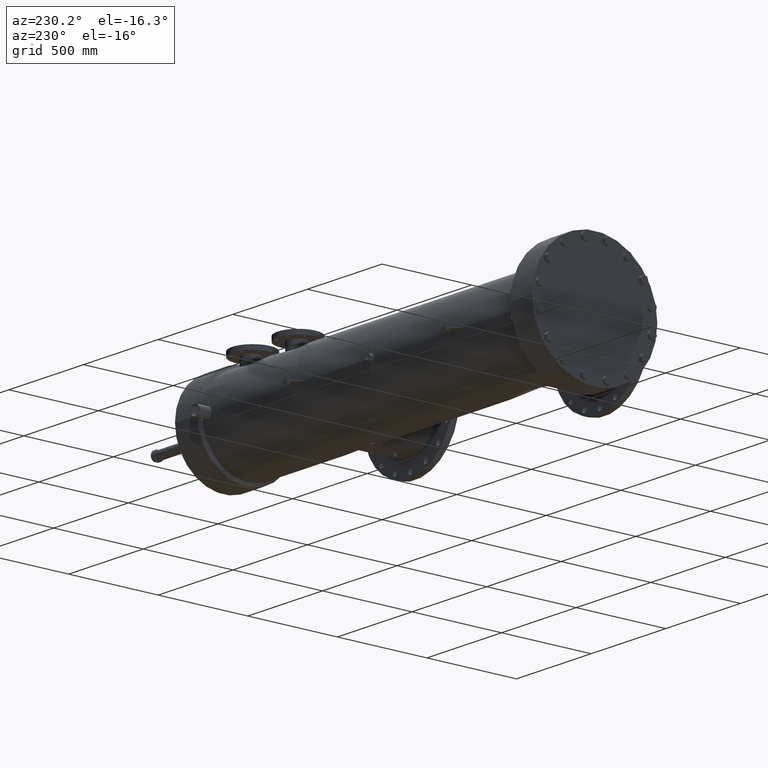
[diagram: clean part render]
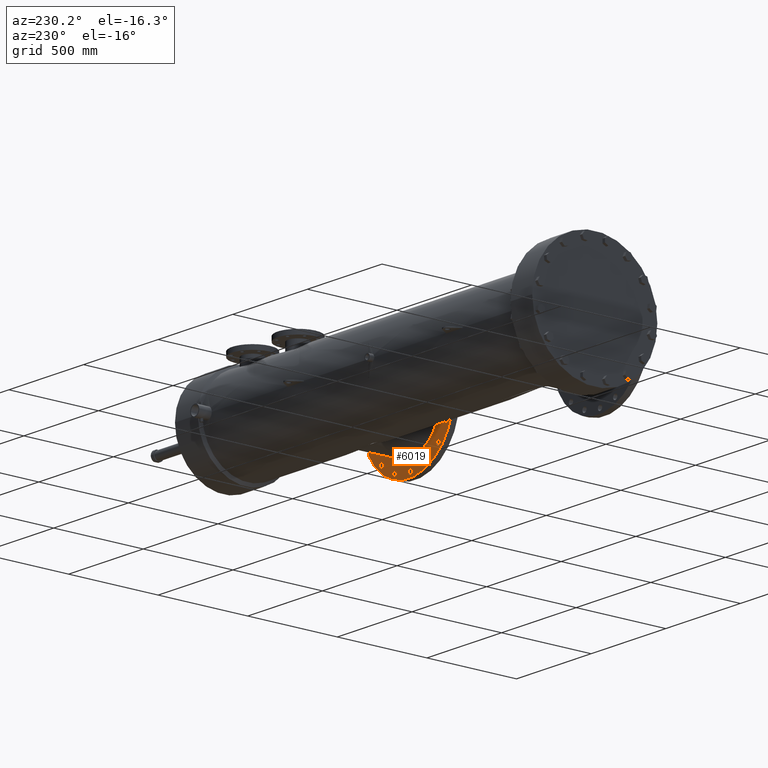
[diagram: same view with one face highlighted and labeled with its STEP entity id]
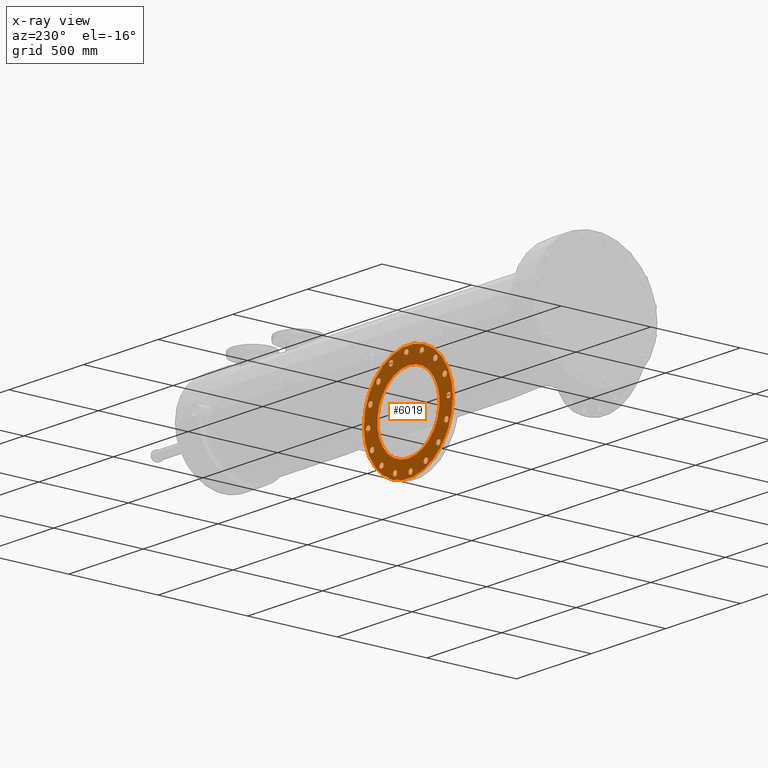
[diagram: x-ray of the same camera — body ghosted, the highlighted face saturated]
A machine part, auxiliary view. The second image highlights one B-rep face of the part: STEP entity #6019.
The next image is the same camera in x-ray: the body ghosted, the highlighted face saturated — about 64% of this face is hidden behind the body in this view.
In plain terms, the highlighted planar face has unit normal (0, -1, 0).
Its self-contained STEP definition (entity closure, byte-faithful):
#63 = DIRECTION ( 'NONE',  ( 1.480676419330224832E-16, -1.000000000000000000, 0.0000000000000000000 ) ) ;
#110 = FACE_BOUND ( 'NONE', #27183, .T. ) ;
#111 = CIRCLE ( 'NONE', #23858, 0.5600000000000006084 ) ;
#112 = CARTESIAN_POINT ( 'NONE',  ( 66.30740194037134927, -15.55999999999999517, -10.61059452241727641 ) ) ;
#130 = EDGE_CURVE ( 'NONE', #6251, #18954, #7925, .T. ) ;
#169 = EDGE_CURVE ( 'NONE', #22085, #3888, #23232, .T. ) ;
#587 = CIRCLE ( 'NONE', #14832, 0.5600000000000006084 ) ;
#680 = DIRECTION ( 'NONE',  ( 1.480676419330224832E-16, -1.000000000000000000, 0.0000000000000000000 ) ) ;
#778 = FACE_BOUND ( 'NONE', #5705, .T. ) ;
#793 = EDGE_LOOP ( 'NONE', ( #9825, #11982 ) ) ;
#866 = VERTEX_POINT ( 'NONE', #1743 ) ;
#882 = VERTEX_POINT ( 'NONE', #27823 ) ;
#1245 = CARTESIAN_POINT ( 'NONE',  ( 56.84592263942093382, -15.55999999999999517, -3.549509922725375244 ) ) ;
#1281 = VERTEX_POINT ( 'NONE', #14366 ) ;
#1512 = VERTEX_POINT ( 'NONE', #9112 ) ;
#1519 = CARTESIAN_POINT ( 'NONE',  ( 71.43197978100022283, -15.55999999999999162, 9.591252612316452542 ) ) ;
#1584 = ORIENTED_EDGE ( 'NONE', *, *, #10883, .T. ) ;
#1607 = CARTESIAN_POINT ( 'NONE',  ( 56.84592263942093382, -15.55999999999999517, -3.549509922725375244 ) ) ;
#1612 = DIRECTION ( 'NONE',  ( 1.000000000000000000, 0.0000000000000000000, 0.0000000000000000000 ) ) ;
#1694 = CIRCLE ( 'NONE', #8399, 0.5600000000000093792 ) ;
#1743 = CARTESIAN_POINT ( 'NONE',  ( 66.86049224117985545, -15.56000000000000405, -8.196850393700785276 ) ) ;
#1838 = ORIENTED_EDGE ( 'NONE', *, *, #26997, .T. ) ;
#1902 = VERTEX_POINT ( 'NONE', #25826 ) ;
#1918 = CARTESIAN_POINT ( 'NONE',  ( 59.18876280426798075, -15.55999999999999517, 7.893917241532289353 ) ) ;
#1927 = ORIENTED_EDGE ( 'NONE', *, *, #22299, .T. ) ;
#2019 = AXIS2_PLACEMENT_3D ( 'NONE', #4158, #10263, #8281 ) ;
#2039 = DIRECTION ( 'NONE',  ( 1.000000000000000000, 0.0000000000000000000, 0.0000000000000000000 ) ) ;
#2152 = ORIENTED_EDGE ( 'NONE', *, *, #130, .T. ) ;
#2169 = CARTESIAN_POINT ( 'NONE',  ( 55.68989771876258033, -15.55999999999999517, 0.5530903008085086281 ) ) ;
#2178 = CARTESIAN_POINT ( 'NONE',  ( 78.03108676359714480, -15.55999999999999162, -0.5530903008085064076 ) ) ;
#2231 = CARTESIAN_POINT ( 'NONE',  ( 67.41358254198836164, -15.55999999999999162, 10.61059452241727463 ) ) ;
#2332 = EDGE_CURVE ( 'NONE', #25750, #866, #11526, .T. ) ;
#2363 = DIRECTION ( 'NONE',  ( 1.000000000000000000, 0.0000000000000000000, 0.0000000000000000000 ) ) ;
#2452 = FACE_BOUND ( 'NONE', #2651, .T. ) ;
#2527 = ORIENTED_EDGE ( 'NONE', *, *, #23782, .T. ) ;
#2651 = EDGE_LOOP ( 'NONE', ( #12347, #21855 ) ) ;
#2659 = DIRECTION ( 'NONE',  ( 1.000000000000000000, 0.0000000000000000000, 0.0000000000000000000 ) ) ;
#2776 = ORIENTED_EDGE ( 'NONE', *, *, #28119, .T. ) ;
#2849 = CARTESIAN_POINT ( 'NONE',  ( 77.47108676359712831, -15.55999999999999162, -0.5530903008085065187 ) ) ;
#2851 = AXIS2_PLACEMENT_3D ( 'NONE', #1607, #12489, #3802 ) ;
#3039 = CARTESIAN_POINT ( 'NONE',  ( 66.86740194037135154, -15.55999999999999517, -10.61059452241727641 ) ) ;
#3057 = AXIS2_PLACEMENT_3D ( 'NONE', #14423, #5679, #27354 ) ;
#3139 = AXIS2_PLACEMENT_3D ( 'NONE', #23870, #10822, #13017 ) ;
#3171 = CIRCLE ( 'NONE', #20107, 0.5600000000000006084 ) ;
#3179 = AXIS2_PLACEMENT_3D ( 'NONE', #18644, #7726, #25055 ) ;
#3341 = EDGE_CURVE ( 'NONE', #17019, #12633, #9110, .T. ) ;
#3397 = EDGE_CURVE ( 'NONE', #4754, #4293, #7747, .T. ) ;
#3484 = DIRECTION ( 'NONE',  ( 1.480676419330224832E-16, -1.000000000000000000, 0.0000000000000000000 ) ) ;
#3492 = FACE_BOUND ( 'NONE', #25784, .T. ) ;
#3499 = ORIENTED_EDGE ( 'NONE', *, *, #19454, .T. ) ;
#3667 = CARTESIAN_POINT ( 'NONE',  ( 63.87098231845448737, -15.55999999999999517, 10.01456960175893229 ) ) ;
#3768 = AXIS2_PLACEMENT_3D ( 'NONE', #13912, #680, #22186 ) ;
#3778 = CIRCLE ( 'NONE', #22339, 0.5600000000000006084 ) ;
#3802 = DIRECTION ( 'NONE',  ( 1.000000000000000000, 0.0000000000000000000, 0.0000000000000000000 ) ) ;
#3829 = DIRECTION ( 'NONE',  ( -0.0000000000000000000, 1.000000000000000000, -0.0000000000000000000 ) ) ;
#3888 = VERTEX_POINT ( 'NONE', #6655 ) ;
#3912 = CARTESIAN_POINT ( 'NONE',  ( 58.96657499964756255, -15.55999999999999517, -7.111729436911893742 ) ) ;
#3979 = CIRCLE ( 'NONE', #9675, 0.5600000000000006084 ) ;
#4034 = DIRECTION ( 'NONE',  ( 1.000000000000000000, 0.0000000000000000000, 0.0000000000000000000 ) ) ;
#4110 = CARTESIAN_POINT ( 'NONE',  ( 66.86049224117985545, -15.56000000000000405, 0.0000000000000000000 ) ) ;
#4133 = AXIS2_PLACEMENT_3D ( 'NONE', #28112, #8723, #2039 ) ;
#4158 = CARTESIAN_POINT ( 'NONE',  ( 66.86049224117985545, -15.55999999999999162, 0.0000000000000000000 ) ) ;
#4190 = FACE_BOUND ( 'NONE', #19580, .T. ) ;
#4202 = CIRCLE ( 'NONE', #21283, 0.5600000000000006084 ) ;
#4293 = VERTEX_POINT ( 'NONE', #27359 ) ;
#4336 = CIRCLE ( 'NONE', #13750, 0.5599999999999918376 ) ;
#4343 = CARTESIAN_POINT ( 'NONE',  ( 74.75440948271216257, -15.55999999999999162, 7.111729436911891966 ) ) ;
#4414 = VERTEX_POINT ( 'NONE', #10697 ) ;
#4578 = EDGE_CURVE ( 'NONE', #6496, #9047, #11072, .T. ) ;
#4604 = ORIENTED_EDGE ( 'NONE', *, *, #24731, .T. ) ;
#4754 = VERTEX_POINT ( 'NONE', #2178 ) ;
#4928 = CIRCLE ( 'NONE', #18351, 0.5599999999999918376 ) ;
#5004 = VERTEX_POINT ( 'NONE', #27480 ) ;
#5152 = CIRCLE ( 'NONE', #4133, 0.5599999999999918376 ) ;
#5208 = FACE_BOUND ( 'NONE', #6139, .T. ) ;
#5406 = ORIENTED_EDGE ( 'NONE', *, *, #3397, .T. ) ;
#5501 = VERTEX_POINT ( 'NONE', #2169 ) ;
#5679 = DIRECTION ( 'NONE',  ( 1.480676419330224832E-16, -1.000000000000000000, 0.0000000000000000000 ) ) ;
#5705 = EDGE_LOOP ( 'NONE', ( #2152, #6222 ) ) ;
#5744 = DIRECTION ( 'NONE',  ( 0.0000000000000000000, 0.0000000000000000000, 1.000000000000000000 ) ) ;
#5935 = CARTESIAN_POINT ( 'NONE',  ( 66.30740194037134927, -15.55999999999999517, -10.61059452241727641 ) ) ;
#5992 = CARTESIAN_POINT ( 'NONE',  ( 76.87506184293879130, -15.55999999999999162, 3.549509922725373023 ) ) ;
#5997 = ORIENTED_EDGE ( 'NONE', *, *, #14522, .T. ) ;
#6019 = ADVANCED_FACE ( 'NONE', ( #14406, #9979, #778, #25630, #8282, #4190, #11679, #20882, #110, #9297, #5208, #23950, #26982, #3492, #21215, #18814, #14059, #2452 ), #11930, .F. ) ;
#6047 = VERTEX_POINT ( 'NONE', #16190 ) ;
#6139 = EDGE_LOOP ( 'NONE', ( #14316, #4604 ) ) ;
#6222 = ORIENTED_EDGE ( 'NONE', *, *, #24518, .T. ) ;
#6224 = DIRECTION ( 'NONE',  ( 1.000000000000000000, 0.0000000000000000000, 0.0000000000000000000 ) ) ;
#6251 = VERTEX_POINT ( 'NONE', #23698 ) ;
#6297 = DIRECTION ( 'NONE',  ( 1.000000000000000000, 0.0000000000000000000, 0.0000000000000000000 ) ) ;
#6496 = VERTEX_POINT ( 'NONE', #8948 ) ;
#6655 = CARTESIAN_POINT ( 'NONE',  ( 66.85358254198835937, -15.55999999999999162, 10.61059452241727463 ) ) ;
#6699 = CARTESIAN_POINT ( 'NONE',  ( 66.86049224117985545, -15.56000000000000405, 8.196850393700785276 ) ) ;
#6725 = ORIENTED_EDGE ( 'NONE', *, *, #17331, .T. ) ;
#6766 = ORIENTED_EDGE ( 'NONE', *, *, #28145, .T. ) ;
#6863 = AXIS2_PLACEMENT_3D ( 'NONE', #1245, #27220, #18646 ) ;
#6926 = CIRCLE ( 'NONE', #3768, 0.5600000000000006084 ) ;
#7131 = ORIENTED_EDGE ( 'NONE', *, *, #13999, .T. ) ;
#7284 = ORIENTED_EDGE ( 'NONE', *, *, #22568, .T. ) ;
#7298 = VERTEX_POINT ( 'NONE', #1918 ) ;
#7361 = CARTESIAN_POINT ( 'NONE',  ( 63.31098231845449220, -15.55999999999999517, 10.01456960175893229 ) ) ;
#7362 = DIRECTION ( 'NONE',  ( 1.000000000000000000, 0.0000000000000000000, 0.0000000000000000000 ) ) ;
#7524 = DIRECTION ( 'NONE',  ( 1.480676419330224832E-16, -1.000000000000000000, 0.0000000000000000000 ) ) ;
#7546 = CARTESIAN_POINT ( 'NONE',  ( 58.96657499964756255, -15.55999999999999517, -7.111729436911893742 ) ) ;
#7615 = CIRCLE ( 'NONE', #24758, 0.5600000000000006084 ) ;
#7630 = DIRECTION ( 'NONE',  ( 1.000000000000000000, 0.0000000000000000000, 0.0000000000000000000 ) ) ;
#7726 = DIRECTION ( 'NONE',  ( 1.480676419330224832E-16, -1.000000000000000000, 0.0000000000000000000 ) ) ;
#7747 = CIRCLE ( 'NONE', #23665, 0.5600000000000093792 ) ;
#7820 = DIRECTION ( 'NONE',  ( 1.000000000000000000, 0.0000000000000000000, 0.0000000000000000000 ) ) ;
#7925 = CIRCLE ( 'NONE', #19237, 0.5600000000000006084 ) ;
#7931 = DIRECTION ( 'NONE',  ( -0.0000000000000000000, 1.000000000000000000, -0.0000000000000000000 ) ) ;
#8015 = DIRECTION ( 'NONE',  ( 1.480676419330224832E-16, -1.000000000000000000, 0.0000000000000000000 ) ) ;
#8089 = ORIENTED_EDGE ( 'NONE', *, *, #20550, .T. ) ;
#8126 = DIRECTION ( 'NONE',  ( 1.480676419330224832E-16, -1.000000000000000000, 0.0000000000000000000 ) ) ;
#8133 = AXIS2_PLACEMENT_3D ( 'NONE', #24191, #11227, #17492 ) ;
#8185 = DIRECTION ( 'NONE',  ( 1.480676419330224832E-16, -1.000000000000000000, 0.0000000000000000000 ) ) ;
#8230 = EDGE_CURVE ( 'NONE', #10301, #22452, #18337, .T. ) ;
#8281 = DIRECTION ( 'NONE',  ( 1.000000000000000000, 1.859981612707582838E-16, 0.0000000000000000000 ) ) ;
#8282 = FACE_BOUND ( 'NONE', #25633, .T. ) ;
#8318 = AXIS2_PLACEMENT_3D ( 'NONE', #4110, #3829, #10673 ) ;
#8399 = AXIS2_PLACEMENT_3D ( 'NONE', #2849, #18076, #2659 ) ;
#8411 = AXIS2_PLACEMENT_3D ( 'NONE', #14450, #3484, #16628 ) ;
#8474 = AXIS2_PLACEMENT_3D ( 'NONE', #4343, #63, #17166 ) ;
#8639 = DIRECTION ( 'NONE',  ( 1.000000000000000000, 0.0000000000000000000, 0.0000000000000000000 ) ) ;
#8673 = EDGE_LOOP ( 'NONE', ( #7284, #26145 ) ) ;
#8723 = DIRECTION ( 'NONE',  ( 1.480676419330224832E-16, -1.000000000000000000, 0.0000000000000000000 ) ) ;
#8875 = CIRCLE ( 'NONE', #8411, 0.5600000000000006084 ) ;
#8948 = CARTESIAN_POINT ( 'NONE',  ( 58.40657499964756028, -15.55999999999999517, -7.111729436911893742 ) ) ;
#8955 = CARTESIAN_POINT ( 'NONE',  ( 74.53222167809175858, -15.55999999999999162, -7.893917241532292906 ) ) ;
#9047 = VERTEX_POINT ( 'NONE', #24028 ) ;
#9104 = CARTESIAN_POINT ( 'NONE',  ( 57.26923962886340291, -15.55999999999999517, 4.571487539820351387 ) ) ;
#9110 = CIRCLE ( 'NONE', #3057, 11.75000000000000355 ) ;
#9112 = CARTESIAN_POINT ( 'NONE',  ( 77.01174485349631027, -15.55999999999999162, -4.571487539820353163 ) ) ;
#9171 = EDGE_CURVE ( 'NONE', #4293, #4754, #1694, .T. ) ;
#9297 = FACE_BOUND ( 'NONE', #20203, .T. ) ;
#9312 = DIRECTION ( 'NONE',  ( 1.000000000000000000, 0.0000000000000000000, 0.0000000000000000000 ) ) ;
#9517 = AXIS2_PLACEMENT_3D ( 'NONE', #15164, #28090, #15076 ) ;
#9523 = DIRECTION ( 'NONE',  ( 1.000000000000000000, 0.0000000000000000000, 0.0000000000000000000 ) ) ;
#9629 = DIRECTION ( 'NONE',  ( 1.000000000000000000, 0.0000000000000000000, 0.0000000000000000000 ) ) ;
#9675 = AXIS2_PLACEMENT_3D ( 'NONE', #26946, #22943, #7630 ) ;
#9825 = ORIENTED_EDGE ( 'NONE', *, *, #20161, .T. ) ;
#9979 = FACE_OUTER_BOUND ( 'NONE', #10766, .T. ) ;
#10020 = DIRECTION ( 'NONE',  ( 1.480676419330224832E-16, -1.000000000000000000, 0.0000000000000000000 ) ) ;
#10064 = ORIENTED_EDGE ( 'NONE', *, *, #27852, .T. ) ;
#10094 = CARTESIAN_POINT ( 'NONE',  ( 56.24989771876258260, -15.55999999999999517, 0.5530903008085086281 ) ) ;
#10263 = DIRECTION ( 'NONE',  ( 1.480676419330224832E-16, -1.000000000000000000, 0.0000000000000000000 ) ) ;
#10301 = VERTEX_POINT ( 'NONE', #14836 ) ;
#10577 = CIRCLE ( 'NONE', #8318, 8.196850393700785276 ) ;
#10673 = DIRECTION ( 'NONE',  ( 0.0000000000000000000, 0.0000000000000000000, 1.000000000000000000 ) ) ;
#10697 = CARTESIAN_POINT ( 'NONE',  ( 56.70923962886340775, -15.55999999999999517, 4.571487539820351387 ) ) ;
#10737 = CARTESIAN_POINT ( 'NONE',  ( 76.31506184293878903, -15.55999999999999162, 3.549509922725373023 ) ) ;
#10766 = EDGE_LOOP ( 'NONE', ( #17318, #16480 ) ) ;
#10822 = DIRECTION ( 'NONE',  ( 1.480676419330224832E-16, -1.000000000000000000, 0.0000000000000000000 ) ) ;
#10883 = EDGE_CURVE ( 'NONE', #11329, #1512, #12842, .T. ) ;
#11072 = CIRCLE ( 'NONE', #11494, 0.5600000000000006084 ) ;
#11227 = DIRECTION ( 'NONE',  ( 1.480676419330224832E-16, -1.000000000000000000, 0.0000000000000000000 ) ) ;
#11329 = VERTEX_POINT ( 'NONE', #24846 ) ;
#11494 = AXIS2_PLACEMENT_3D ( 'NONE', #7546, #10020, #14207 ) ;
#11526 = CIRCLE ( 'NONE', #11627, 8.196850393700785276 ) ;
#11615 = EDGE_CURVE ( 'NONE', #12633, #17019, #16879, .T. ) ;
#11627 = AXIS2_PLACEMENT_3D ( 'NONE', #25532, #7931, #5744 ) ;
#11672 = EDGE_CURVE ( 'NONE', #19267, #15491, #11781, .T. ) ;
#11679 = FACE_BOUND ( 'NONE', #8673, .T. ) ;
#11781 = CIRCLE ( 'NONE', #15169, 0.5600000000000006084 ) ;
#11908 = EDGE_LOOP ( 'NONE', ( #16607, #5406 ) ) ;
#11930 = PLANE ( 'NONE',  #3179 ) ;
#11955 = CARTESIAN_POINT ( 'NONE',  ( 78.61049224117986967, -15.55999999999998984, 1.438959988998140555E-15 ) ) ;
#11982 = ORIENTED_EDGE ( 'NONE', *, *, #13394, .T. ) ;
#12006 = EDGE_LOOP ( 'NONE', ( #8089, #6725 ) ) ;
#12109 = CIRCLE ( 'NONE', #8133, 0.5599999999999918376 ) ;
#12339 = EDGE_LOOP ( 'NONE', ( #12863, #26348 ) ) ;
#12347 = ORIENTED_EDGE ( 'NONE', *, *, #16618, .T. ) ;
#12404 = CARTESIAN_POINT ( 'NONE',  ( 55.11049224117985545, -15.55999999999999517, 0.0000000000000000000 ) ) ;
#12489 = DIRECTION ( 'NONE',  ( 1.480676419330224832E-16, -1.000000000000000000, 0.0000000000000000000 ) ) ;
#12532 = DIRECTION ( 'NONE',  ( 1.480676419330224832E-16, -1.000000000000000000, 0.0000000000000000000 ) ) ;
#12559 = DIRECTION ( 'NONE',  ( 1.000000000000000000, 0.0000000000000000000, 0.0000000000000000000 ) ) ;
#12560 = DIRECTION ( 'NONE',  ( 1.000000000000000000, 0.0000000000000000000, 0.0000000000000000000 ) ) ;
#12633 = VERTEX_POINT ( 'NONE', #12404 ) ;
#12671 = CARTESIAN_POINT ( 'NONE',  ( 65.74740194037134700, -15.55999999999999517, -10.61059452241727641 ) ) ;
#12706 = EDGE_CURVE ( 'NONE', #28169, #5501, #21923, .T. ) ;
#12772 = ORIENTED_EDGE ( 'NONE', *, *, #4578, .T. ) ;
#12842 = CIRCLE ( 'NONE', #9517, 0.5599999999999918376 ) ;
#12860 = CARTESIAN_POINT ( 'NONE',  ( 77.43506184293879357, -15.55999999999999162, 3.549509922725373023 ) ) ;
#12863 = ORIENTED_EDGE ( 'NONE', *, *, #20308, .T. ) ;
#13017 = DIRECTION ( 'NONE',  ( 1.000000000000000000, 0.0000000000000000000, 0.0000000000000000000 ) ) ;
#13394 = EDGE_CURVE ( 'NONE', #1902, #19080, #18795, .T. ) ;
#13409 = CARTESIAN_POINT ( 'NONE',  ( 74.75440948271216257, -15.55999999999999162, 7.111729436911891966 ) ) ;
#13541 = CARTESIAN_POINT ( 'NONE',  ( 70.87197978100022056, -15.55999999999999162, 9.591252612316452542 ) ) ;
#13566 = CARTESIAN_POINT ( 'NONE',  ( 71.99197978100021089, -15.55999999999999162, 9.591252612316452542 ) ) ;
#13750 = AXIS2_PLACEMENT_3D ( 'NONE', #20566, #7524, #22754 ) ;
#13912 = CARTESIAN_POINT ( 'NONE',  ( 71.43197978100022283, -15.55999999999999162, 9.591252612316452542 ) ) ;
#13933 = AXIS2_PLACEMENT_3D ( 'NONE', #27112, #14096, #7820 ) ;
#13999 = EDGE_CURVE ( 'NONE', #17650, #6047, #18760, .T. ) ;
#14059 = FACE_BOUND ( 'NONE', #12006, .T. ) ;
#14096 = DIRECTION ( 'NONE',  ( 1.480676419330224832E-16, -1.000000000000000000, 0.0000000000000000000 ) ) ;
#14207 = DIRECTION ( 'NONE',  ( 1.000000000000000000, 0.0000000000000000000, 0.0000000000000000000 ) ) ;
#14316 = ORIENTED_EDGE ( 'NONE', *, *, #21585, .T. ) ;
#14319 = ORIENTED_EDGE ( 'NONE', *, *, #19214, .T. ) ;
#14343 = EDGE_CURVE ( 'NONE', #866, #25750, #10577, .T. ) ;
#14366 = CARTESIAN_POINT ( 'NONE',  ( 70.97000216390523519, -15.55999999999999162, -10.01456960175893229 ) ) ;
#14406 = FACE_BOUND ( 'NONE', #21846, .T. ) ;
#14423 = CARTESIAN_POINT ( 'NONE',  ( 66.86049224117985545, -15.55999999999999162, 0.0000000000000000000 ) ) ;
#14427 = CARTESIAN_POINT ( 'NONE',  ( 67.41358254198836164, -15.55999999999999162, 10.61059452241727463 ) ) ;
#14450 = CARTESIAN_POINT ( 'NONE',  ( 76.87506184293879130, -15.55999999999999162, 3.549509922725373023 ) ) ;
#14522 = EDGE_CURVE ( 'NONE', #3888, #22085, #3778, .T. ) ;
#14715 = DIRECTION ( 'NONE',  ( 1.000000000000000000, 0.0000000000000000000, 0.0000000000000000000 ) ) ;
#14832 = AXIS2_PLACEMENT_3D ( 'NONE', #13409, #20164, #9312 ) ;
#14836 = CARTESIAN_POINT ( 'NONE',  ( 73.41222167809175403, -15.55999999999999162, -7.893917241532292906 ) ) ;
#15008 = AXIS2_PLACEMENT_3D ( 'NONE', #25702, #17113, #6297 ) ;
#15076 = DIRECTION ( 'NONE',  ( 1.000000000000000000, 0.0000000000000000000, 0.0000000000000000000 ) ) ;
#15164 = CARTESIAN_POINT ( 'NONE',  ( 76.45174485349632221, -15.55999999999999162, -4.571487539820353163 ) ) ;
#15169 = AXIS2_PLACEMENT_3D ( 'NONE', #5992, #8185, #12559 ) ;
#15177 = EDGE_LOOP ( 'NONE', ( #1838, #27794 ) ) ;
#15491 = VERTEX_POINT ( 'NONE', #10737 ) ;
#15623 = CARTESIAN_POINT ( 'NONE',  ( 61.72900470135950712, -15.55999999999999517, -9.591252612316454318 ) ) ;
#15661 = DIRECTION ( 'NONE',  ( 1.480676419330224832E-16, -1.000000000000000000, 0.0000000000000000000 ) ) ;
#16190 = CARTESIAN_POINT ( 'NONE',  ( 75.31440948271216484, -15.55999999999999162, 7.111729436911891966 ) ) ;
#16239 = DIRECTION ( 'NONE',  ( 1.000000000000000000, 0.0000000000000000000, 0.0000000000000000000 ) ) ;
#16479 = CIRCLE ( 'NONE', #6863, 0.5600000000000006084 ) ;
#16480 = ORIENTED_EDGE ( 'NONE', *, *, #3341, .F. ) ;
#16607 = ORIENTED_EDGE ( 'NONE', *, *, #9171, .T. ) ;
#16618 = EDGE_CURVE ( 'NONE', #7298, #18268, #4928, .T. ) ;
#16628 = DIRECTION ( 'NONE',  ( 1.000000000000000000, 0.0000000000000000000, 0.0000000000000000000 ) ) ;
#16879 = CIRCLE ( 'NONE', #2019, 11.75000000000000355 ) ;
#17019 = VERTEX_POINT ( 'NONE', #11955 ) ;
#17113 = DIRECTION ( 'NONE',  ( 1.480676419330224832E-16, -1.000000000000000000, 0.0000000000000000000 ) ) ;
#17126 = CARTESIAN_POINT ( 'NONE',  ( 56.80989771876258487, -15.55999999999999517, 0.5530903008085087391 ) ) ;
#17166 = DIRECTION ( 'NONE',  ( 1.000000000000000000, 0.0000000000000000000, 0.0000000000000000000 ) ) ;
#17318 = ORIENTED_EDGE ( 'NONE', *, *, #11615, .F. ) ;
#17331 = EDGE_CURVE ( 'NONE', #882, #4414, #111, .T. ) ;
#17382 = VERTEX_POINT ( 'NONE', #19021 ) ;
#17464 = EDGE_CURVE ( 'NONE', #17382, #18243, #27658, .T. ) ;
#17488 = AXIS2_PLACEMENT_3D ( 'NONE', #22645, #22739, #9523 ) ;
#17492 = DIRECTION ( 'NONE',  ( 1.000000000000000000, 0.0000000000000000000, 0.0000000000000000000 ) ) ;
#17650 = VERTEX_POINT ( 'NONE', #21877 ) ;
#17719 = AXIS2_PLACEMENT_3D ( 'NONE', #7361, #24796, #17806 ) ;
#17806 = DIRECTION ( 'NONE',  ( 1.000000000000000000, 0.0000000000000000000, 0.0000000000000000000 ) ) ;
#17980 = CIRCLE ( 'NONE', #3139, 0.5600000000000006084 ) ;
#18076 = DIRECTION ( 'NONE',  ( 1.480676419330224832E-16, -1.000000000000000000, 0.0000000000000000000 ) ) ;
#18243 = VERTEX_POINT ( 'NONE', #19271 ) ;
#18268 = VERTEX_POINT ( 'NONE', #19462 ) ;
#18337 = CIRCLE ( 'NONE', #18361, 0.5600000000000006084 ) ;
#18351 = AXIS2_PLACEMENT_3D ( 'NONE', #27848, #23304, #12560 ) ;
#18361 = AXIS2_PLACEMENT_3D ( 'NONE', #20220, #22406, #7362 ) ;
#18453 = VERTEX_POINT ( 'NONE', #13566 ) ;
#18541 = CARTESIAN_POINT ( 'NONE',  ( 57.26923962886340291, -15.55999999999999517, 4.571487539820351387 ) ) ;
#18597 = CIRCLE ( 'NONE', #21342, 0.5600000000000006084 ) ;
#18644 = CARTESIAN_POINT ( 'NONE',  ( 66.86049224117985545, -15.55999999999999162, 0.0000000000000000000 ) ) ;
#18646 = DIRECTION ( 'NONE',  ( 1.000000000000000000, 0.0000000000000000000, 0.0000000000000000000 ) ) ;
#18760 = CIRCLE ( 'NONE', #8474, 0.5600000000000006084 ) ;
#18762 = AXIS2_PLACEMENT_3D ( 'NONE', #112, #28058, #2363 ) ;
#18795 = CIRCLE ( 'NONE', #13933, 0.5600000000000006084 ) ;
#18814 = FACE_BOUND ( 'NONE', #12339, .T. ) ;
#18929 = ORIENTED_EDGE ( 'NONE', *, *, #14343, .F. ) ;
#18954 = VERTEX_POINT ( 'NONE', #3667 ) ;
#19021 = CARTESIAN_POINT ( 'NONE',  ( 57.40592263942093609, -15.55999999999999517, -3.549509922725375244 ) ) ;
#19080 = VERTEX_POINT ( 'NONE', #15623 ) ;
#19165 = ORIENTED_EDGE ( 'NONE', *, *, #169, .T. ) ;
#19214 = EDGE_CURVE ( 'NONE', #18453, #25779, #19992, .T. ) ;
#19231 = ORIENTED_EDGE ( 'NONE', *, *, #8230, .T. ) ;
#19237 = AXIS2_PLACEMENT_3D ( 'NONE', #22891, #22987, #16239 ) ;
#19267 = VERTEX_POINT ( 'NONE', #12860 ) ;
#19271 = CARTESIAN_POINT ( 'NONE',  ( 56.28592263942093155, -15.55999999999999517, -3.549509922725375244 ) ) ;
#19454 = EDGE_CURVE ( 'NONE', #1512, #11329, #27457, .T. ) ;
#19462 = CARTESIAN_POINT ( 'NONE',  ( 60.30876280426796399, -15.55999999999999517, 7.893917241532289353 ) ) ;
#19531 = EDGE_LOOP ( 'NONE', ( #1927, #6766 ) ) ;
#19580 = EDGE_LOOP ( 'NONE', ( #7131, #27706 ) ) ;
#19992 = CIRCLE ( 'NONE', #27869, 0.5600000000000006084 ) ;
#20107 = AXIS2_PLACEMENT_3D ( 'NONE', #9104, #26676, #22131 ) ;
#20161 = EDGE_CURVE ( 'NONE', #19080, #1902, #3979, .T. ) ;
#20164 = DIRECTION ( 'NONE',  ( 1.480676419330224832E-16, -1.000000000000000000, 0.0000000000000000000 ) ) ;
#20203 = EDGE_LOOP ( 'NONE', ( #19231, #2527 ) ) ;
#20206 = CARTESIAN_POINT ( 'NONE',  ( 67.97358254198836391, -15.55999999999999162, 10.61059452241727463 ) ) ;
#20220 = CARTESIAN_POINT ( 'NONE',  ( 73.97222167809175630, -15.55999999999999162, -7.893917241532292906 ) ) ;
#20308 = EDGE_CURVE ( 'NONE', #5501, #28169, #18597, .T. ) ;
#20550 = EDGE_CURVE ( 'NONE', #4414, #882, #3171, .T. ) ;
#20566 = CARTESIAN_POINT ( 'NONE',  ( 70.41000216390524713, -15.55999999999999162, -10.01456960175893229 ) ) ;
#20882 = FACE_BOUND ( 'NONE', #11908, .T. ) ;
#21002 = DIRECTION ( 'NONE',  ( 1.480676419330224832E-16, -1.000000000000000000, 0.0000000000000000000 ) ) ;
#21061 = DIRECTION ( 'NONE',  ( 1.480676419330224832E-16, -1.000000000000000000, 0.0000000000000000000 ) ) ;
#21215 = FACE_BOUND ( 'NONE', #15177, .T. ) ;
#21283 = AXIS2_PLACEMENT_3D ( 'NONE', #5935, #8126, #6224 ) ;
#21334 = DIRECTION ( 'NONE',  ( 1.000000000000000000, 0.0000000000000000000, 0.0000000000000000000 ) ) ;
#21342 = AXIS2_PLACEMENT_3D ( 'NONE', #10094, #21061, #8639 ) ;
#21585 = EDGE_CURVE ( 'NONE', #5004, #1281, #5152, .T. ) ;
#21846 = EDGE_LOOP ( 'NONE', ( #27849, #18929 ) ) ;
#21855 = ORIENTED_EDGE ( 'NONE', *, *, #26189, .T. ) ;
#21877 = CARTESIAN_POINT ( 'NONE',  ( 74.19440948271216030, -15.55999999999999162, 7.111729436911891966 ) ) ;
#21923 = CIRCLE ( 'NONE', #15008, 0.5600000000000006084 ) ;
#22033 = DIRECTION ( 'NONE',  ( 1.000000000000000000, 0.0000000000000000000, 0.0000000000000000000 ) ) ;
#22085 = VERTEX_POINT ( 'NONE', #20206 ) ;
#22131 = DIRECTION ( 'NONE',  ( 1.000000000000000000, 0.0000000000000000000, 0.0000000000000000000 ) ) ;
#22186 = DIRECTION ( 'NONE',  ( 1.000000000000000000, 0.0000000000000000000, 0.0000000000000000000 ) ) ;
#22299 = EDGE_CURVE ( 'NONE', #24895, #27954, #28232, .T. ) ;
#22339 = AXIS2_PLACEMENT_3D ( 'NONE', #2231, #15661, #22033 ) ;
#22406 = DIRECTION ( 'NONE',  ( 1.480676419330224832E-16, -1.000000000000000000, 0.0000000000000000000 ) ) ;
#22452 = VERTEX_POINT ( 'NONE', #8955 ) ;
#22568 = EDGE_CURVE ( 'NONE', #15491, #19267, #8875, .T. ) ;
#22645 = CARTESIAN_POINT ( 'NONE',  ( 76.45174485349632221, -15.55999999999999162, -4.571487539820353163 ) ) ;
#22739 = DIRECTION ( 'NONE',  ( 1.480676419330224832E-16, -1.000000000000000000, 0.0000000000000000000 ) ) ;
#22754 = DIRECTION ( 'NONE',  ( 1.000000000000000000, 0.0000000000000000000, 0.0000000000000000000 ) ) ;
#22891 = CARTESIAN_POINT ( 'NONE',  ( 63.31098231845449220, -15.55999999999999517, 10.01456960175893229 ) ) ;
#22943 = DIRECTION ( 'NONE',  ( 1.480676419330224832E-16, -1.000000000000000000, 0.0000000000000000000 ) ) ;
#22987 = DIRECTION ( 'NONE',  ( 1.480676419330224832E-16, -1.000000000000000000, 0.0000000000000000000 ) ) ;
#23232 = CIRCLE ( 'NONE', #24715, 0.5600000000000006084 ) ;
#23246 = EDGE_LOOP ( 'NONE', ( #5997, #19165 ) ) ;
#23304 = DIRECTION ( 'NONE',  ( 1.480676419330224832E-16, -1.000000000000000000, 0.0000000000000000000 ) ) ;
#23436 = DIRECTION ( 'NONE',  ( 1.480676419330224832E-16, -1.000000000000000000, 0.0000000000000000000 ) ) ;
#23665 = AXIS2_PLACEMENT_3D ( 'NONE', #27997, #12532, #4034 ) ;
#23698 = CARTESIAN_POINT ( 'NONE',  ( 62.75098231845448993, -15.55999999999999517, 10.01456960175893229 ) ) ;
#23782 = EDGE_CURVE ( 'NONE', #22452, #10301, #17980, .T. ) ;
#23858 = AXIS2_PLACEMENT_3D ( 'NONE', #18541, #27216, #9629 ) ;
#23870 = CARTESIAN_POINT ( 'NONE',  ( 73.97222167809175630, -15.55999999999999162, -7.893917241532292906 ) ) ;
#23950 = FACE_BOUND ( 'NONE', #19531, .T. ) ;
#24028 = CARTESIAN_POINT ( 'NONE',  ( 59.52657499964756482, -15.55999999999999517, -7.111729436911893742 ) ) ;
#24191 = CARTESIAN_POINT ( 'NONE',  ( 59.74876280426796882, -15.55999999999999517, 7.893917241532289353 ) ) ;
#24518 = EDGE_CURVE ( 'NONE', #18954, #6251, #25130, .T. ) ;
#24580 = EDGE_CURVE ( 'NONE', #6047, #17650, #587, .T. ) ;
#24715 = AXIS2_PLACEMENT_3D ( 'NONE', #14427, #21002, #14715 ) ;
#24731 = EDGE_CURVE ( 'NONE', #1281, #5004, #4336, .T. ) ;
#24758 = AXIS2_PLACEMENT_3D ( 'NONE', #3912, #23436, #21334 ) ;
#24796 = DIRECTION ( 'NONE',  ( 1.480676419330224832E-16, -1.000000000000000000, 0.0000000000000000000 ) ) ;
#24846 = CARTESIAN_POINT ( 'NONE',  ( 75.89174485349631993, -15.55999999999999162, -4.571487539820353163 ) ) ;
#24895 = VERTEX_POINT ( 'NONE', #12671 ) ;
#25055 = DIRECTION ( 'NONE',  ( 1.000000000000000000, 1.480676419330224832E-16, 0.0000000000000000000 ) ) ;
#25130 = CIRCLE ( 'NONE', #17719, 0.5600000000000006084 ) ;
#25532 = CARTESIAN_POINT ( 'NONE',  ( 66.86049224117985545, -15.56000000000000405, 0.0000000000000000000 ) ) ;
#25630 = FACE_BOUND ( 'NONE', #23246, .T. ) ;
#25633 = EDGE_LOOP ( 'NONE', ( #10064, #14319 ) ) ;
#25702 = CARTESIAN_POINT ( 'NONE',  ( 56.24989771876258260, -15.55999999999999517, 0.5530903008085086281 ) ) ;
#25750 = VERTEX_POINT ( 'NONE', #6699 ) ;
#25779 = VERTEX_POINT ( 'NONE', #13541 ) ;
#25784 = EDGE_LOOP ( 'NONE', ( #12772, #2776 ) ) ;
#25826 = CARTESIAN_POINT ( 'NONE',  ( 62.84900470135950457, -15.55999999999999517, -9.591252612316454318 ) ) ;
#26145 = ORIENTED_EDGE ( 'NONE', *, *, #11672, .T. ) ;
#26189 = EDGE_CURVE ( 'NONE', #18268, #7298, #12109, .T. ) ;
#26348 = ORIENTED_EDGE ( 'NONE', *, *, #12706, .T. ) ;
#26676 = DIRECTION ( 'NONE',  ( 1.480676419330224832E-16, -1.000000000000000000, 0.0000000000000000000 ) ) ;
#26946 = CARTESIAN_POINT ( 'NONE',  ( 62.28900470135950229, -15.55999999999999517, -9.591252612316454318 ) ) ;
#26982 = FACE_BOUND ( 'NONE', #793, .T. ) ;
#26997 = EDGE_CURVE ( 'NONE', #18243, #17382, #16479, .T. ) ;
#27112 = CARTESIAN_POINT ( 'NONE',  ( 62.28900470135950229, -15.55999999999999517, -9.591252612316454318 ) ) ;
#27183 = EDGE_LOOP ( 'NONE', ( #1584, #3499 ) ) ;
#27216 = DIRECTION ( 'NONE',  ( 1.480676419330224832E-16, -1.000000000000000000, 0.0000000000000000000 ) ) ;
#27220 = DIRECTION ( 'NONE',  ( 1.480676419330224832E-16, -1.000000000000000000, 0.0000000000000000000 ) ) ;
#27354 = DIRECTION ( 'NONE',  ( 1.000000000000000000, 1.859981612707582838E-16, 0.0000000000000000000 ) ) ;
#27359 = CARTESIAN_POINT ( 'NONE',  ( 76.91108676359712604, -15.55999999999999162, -0.5530903008085065187 ) ) ;
#27457 = CIRCLE ( 'NONE', #17488, 0.5599999999999918376 ) ;
#27480 = CARTESIAN_POINT ( 'NONE',  ( 69.85000216390524486, -15.55999999999999162, -10.01456960175893229 ) ) ;
#27658 = CIRCLE ( 'NONE', #2851, 0.5600000000000006084 ) ;
#27706 = ORIENTED_EDGE ( 'NONE', *, *, #24580, .T. ) ;
#27794 = ORIENTED_EDGE ( 'NONE', *, *, #17464, .T. ) ;
#27823 = CARTESIAN_POINT ( 'NONE',  ( 57.82923962886340519, -15.55999999999999517, 4.571487539820351387 ) ) ;
#27848 = CARTESIAN_POINT ( 'NONE',  ( 59.74876280426796882, -15.55999999999999517, 7.893917241532289353 ) ) ;
#27849 = ORIENTED_EDGE ( 'NONE', *, *, #2332, .F. ) ;
#27852 = EDGE_CURVE ( 'NONE', #25779, #18453, #6926, .T. ) ;
#27869 = AXIS2_PLACEMENT_3D ( 'NONE', #1519, #8015, #1612 ) ;
#27954 = VERTEX_POINT ( 'NONE', #3039 ) ;
#27997 = CARTESIAN_POINT ( 'NONE',  ( 77.47108676359712831, -15.55999999999999162, -0.5530903008085065187 ) ) ;
#28058 = DIRECTION ( 'NONE',  ( 1.480676419330224832E-16, -1.000000000000000000, 0.0000000000000000000 ) ) ;
#28090 = DIRECTION ( 'NONE',  ( 1.480676419330224832E-16, -1.000000000000000000, 0.0000000000000000000 ) ) ;
#28112 = CARTESIAN_POINT ( 'NONE',  ( 70.41000216390524713, -15.55999999999999162, -10.01456960175893229 ) ) ;
#28119 = EDGE_CURVE ( 'NONE', #9047, #6496, #7615, .T. ) ;
#28145 = EDGE_CURVE ( 'NONE', #27954, #24895, #4202, .T. ) ;
#28169 = VERTEX_POINT ( 'NONE', #17126 ) ;
#28232 = CIRCLE ( 'NONE', #18762, 0.5600000000000006084 ) ;